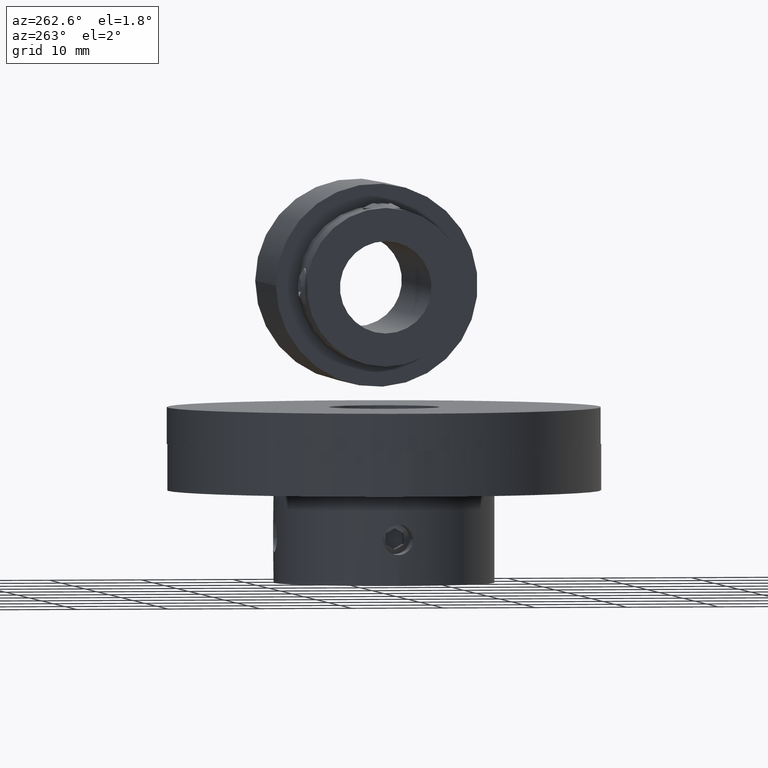
[diagram: clean part render]
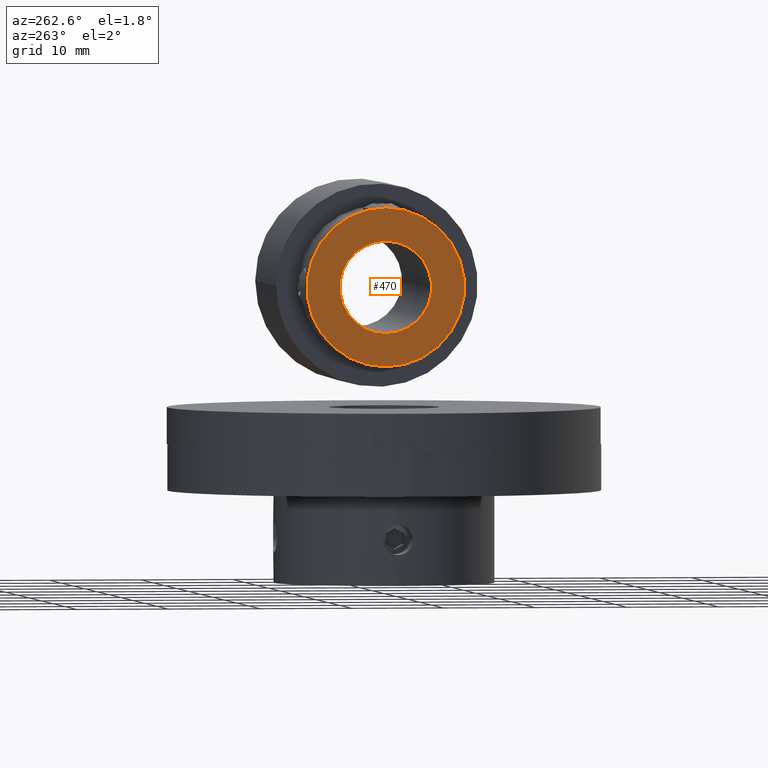
[diagram: same view with one face highlighted and labeled with its STEP entity id]
A machine part, auxiliary view. The second image highlights one B-rep face of the part: STEP entity #470.
In plain terms, the highlighted planar face has unit normal (1, 0, 0).
Its self-contained STEP definition (entity closure, byte-faithful):
#470 = ADVANCED_FACE( '', ( #593, #594 ), #595, .F. );
#593 = FACE_OUTER_BOUND( '', #777, .T. );
#594 = FACE_BOUND( '', #778, .T. );
#595 = PLANE( '', #779 );
#777 = EDGE_LOOP( '', ( #995 ) );
#778 = EDGE_LOOP( '', ( #996 ) );
#779 = AXIS2_PLACEMENT_3D( '', #997, #998, #999 );
#995 = ORIENTED_EDGE( '', *, *, #1348, .F. );
#996 = ORIENTED_EDGE( '', *, *, #1354, .T. );
#997 = CARTESIAN_POINT( '', ( -1.50000000000000, 0.000000000000000, 40.0000000000000 ) );
#998 = DIRECTION( '', ( 1.00000000000000, 0.000000000000000, 0.000000000000000 ) );
#999 = DIRECTION( '', ( 0.000000000000000, 6.12303176911189E-017, -1.00000000000000 ) );
#1348 = EDGE_CURVE( '', #1478, #1478, #1479, .T. );
#1354 = EDGE_CURVE( '', #1490, #1490, #1491, .T. );
#1478 = VERTEX_POINT( '', #1894 );
#1479 = CIRCLE( '', #1895, 8.60000000000000 );
#1490 = VERTEX_POINT( '', #2118 );
#1491 = CIRCLE( '', #2119, 5.00000000000000 );
#1894 = CARTESIAN_POINT( '', ( -1.50000000000000, 0.000000000000000, 31.4000000000000 ) );
#1895 = AXIS2_PLACEMENT_3D( '', #2476, #2477, #2478 );
#2118 = CARTESIAN_POINT( '', ( -1.50000000000000, 3.06151588455594E-016, 35.0000000000000 ) );
#2119 = AXIS2_PLACEMENT_3D( '', #2482, #2483, #2484 );
#2476 = CARTESIAN_POINT( '', ( -1.50000000000000, 0.000000000000000, 40.0000000000000 ) );
#2477 = DIRECTION( '', ( 1.00000000000000, 0.000000000000000, 0.000000000000000 ) );
#2478 = DIRECTION( '', ( 0.000000000000000, 0.000000000000000, -1.00000000000000 ) );
#2482 = CARTESIAN_POINT( '', ( -1.50000000000000, 0.000000000000000, 40.0000000000000 ) );
#2483 = DIRECTION( '', ( 1.00000000000000, 0.000000000000000, 0.000000000000000 ) );
#2484 = DIRECTION( '', ( 0.000000000000000, 6.12303176911189E-017, -1.00000000000000 ) );